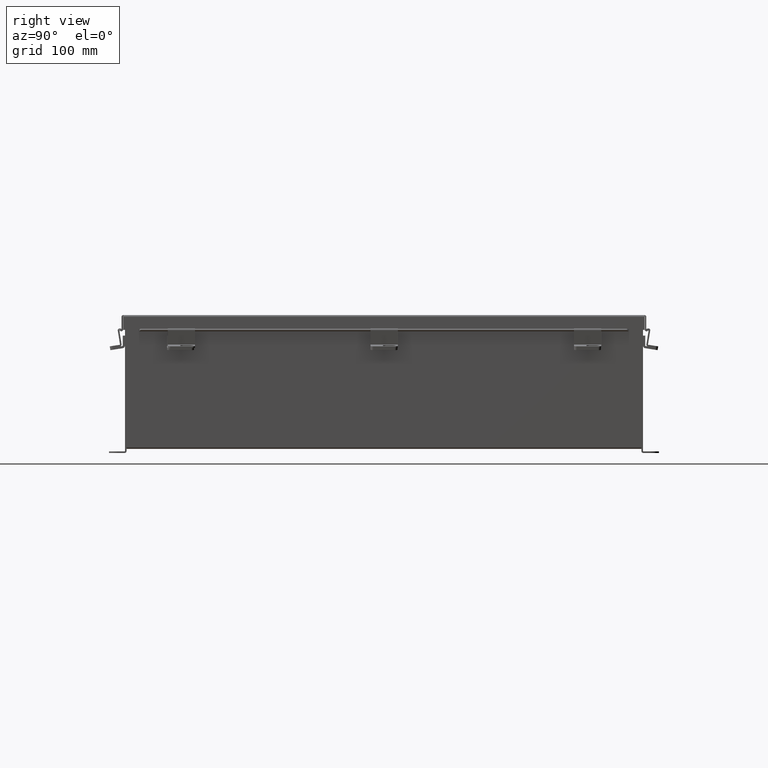
[diagram: clean part render]
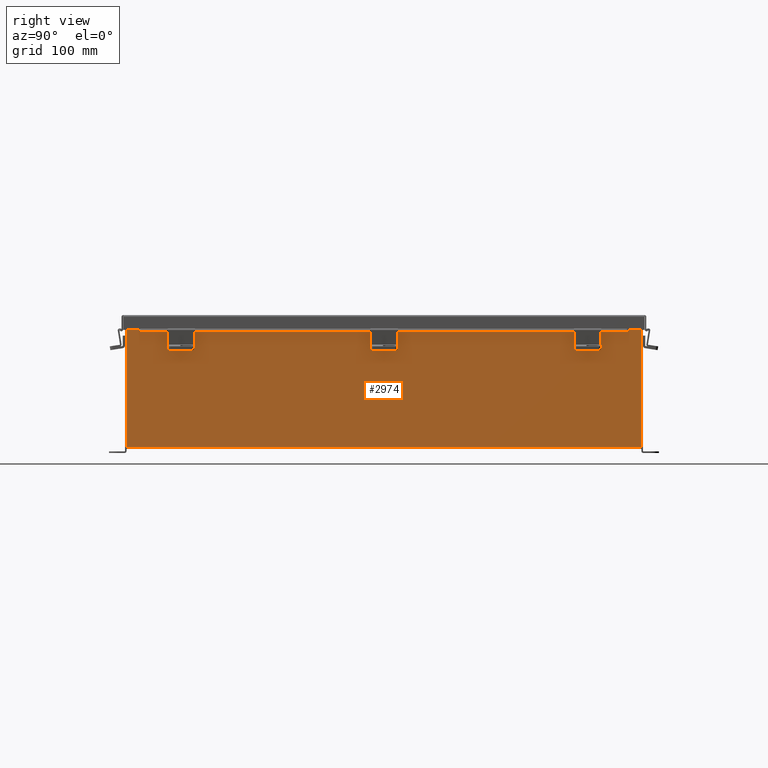
[diagram: same view with one face highlighted and labeled with its STEP entity id]
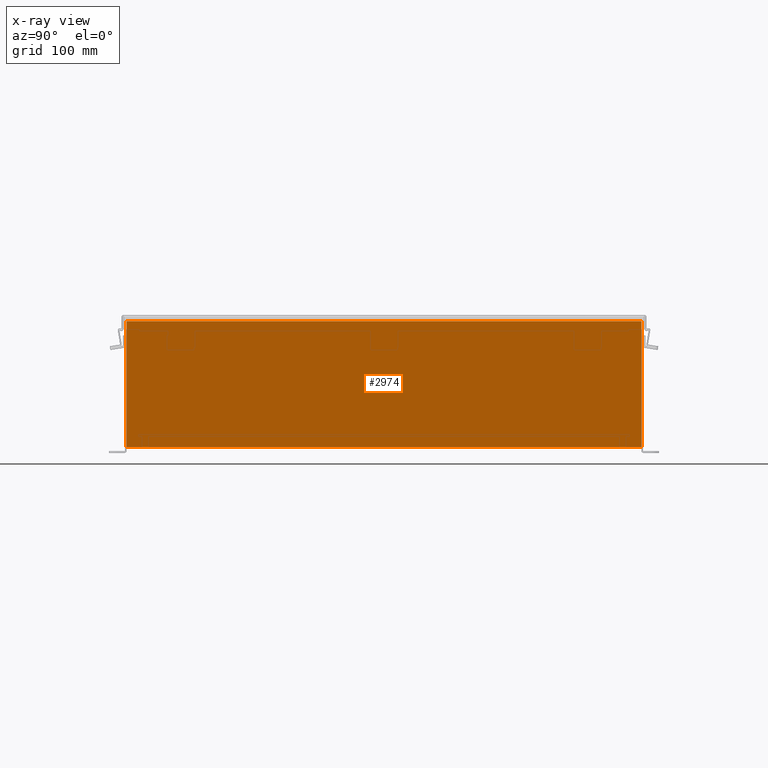
[diagram: x-ray of the same camera — body ghosted, the highlighted face saturated]
A machine part, right view. The second image highlights one B-rep face of the part: STEP entity #2974.
The next image is the same camera in x-ray: the body ghosted, the highlighted face saturated — about 0% of this face is hidden behind the body in this view.
In plain terms, the highlighted planar face has unit normal (-1, 0, 0).
Its self-contained STEP definition (entity closure, byte-faithful):
#78 = DIRECTION ( 'NONE',  ( -0.0000000000000000000, -1.000000000000000000, -0.0000000000000000000 ) ) ;
#608 = CARTESIAN_POINT ( 'NONE',  ( 10.00000000000000000, -11.92530000000000000, 0.01299999999999985900 ) ) ;
#786 = LINE ( 'NONE', #4085, #7155 ) ;
#1065 = CARTESIAN_POINT ( 'NONE',  ( 10.00000000000000000, 11.92529999999999600, -2.942712510675223700E-014 ) ) ;
#1723 = LINE ( 'NONE', #4349, #9102 ) ;
#2073 = CARTESIAN_POINT ( 'NONE',  ( 10.00000000000000000, 11.92529999999999300, 0.01299999999999985900 ) ) ;
#2487 = VERTEX_POINT ( 'NONE', #7092 ) ;
#2641 = ORIENTED_EDGE ( 'NONE', *, *, #8553, .T. ) ;
#2974 = ADVANCED_FACE ( 'NONE', ( #9853 ), #6172, .F. ) ;
#2988 = EDGE_CURVE ( 'NONE', #7101, #2487, #1723, .T. ) ;
#4085 = CARTESIAN_POINT ( 'NONE',  ( 10.00000000000000000, -11.92530000000000000, -3.388345214641706500E-014 ) ) ;
#4204 = LINE ( 'NONE', #6927, #7934 ) ;
#4343 = VERTEX_POINT ( 'NONE', #2073 ) ;
#4349 = CARTESIAN_POINT ( 'NONE',  ( 10.00000000000001800, 11.92529999999999300, 5.837599999999999200 ) ) ;
#4400 = ORIENTED_EDGE ( 'NONE', *, *, #6017, .F. ) ;
#4602 = EDGE_CURVE ( 'NONE', #2487, #5234, #786, .T. ) ;
#4734 = EDGE_LOOP ( 'NONE', ( #6418, #5300, #4400, #2641 ) ) ;
#5126 = DIRECTION ( 'NONE',  ( -0.0000000000000000000, -1.000000000000000000, -0.0000000000000000000 ) ) ;
#5234 = VERTEX_POINT ( 'NONE', #608 ) ;
#5300 = ORIENTED_EDGE ( 'NONE', *, *, #4602, .T. ) ;
#6017 = EDGE_CURVE ( 'NONE', #4343, #5234, #4204, .T. ) ;
#6172 = PLANE ( 'NONE',  #9727 ) ;
#6418 = ORIENTED_EDGE ( 'NONE', *, *, #2988, .T. ) ;
#6678 = CARTESIAN_POINT ( 'NONE',  ( 10.00000000000000000, 0.0000000000000000000, -3.388345214641706500E-014 ) ) ;
#6927 = CARTESIAN_POINT ( 'NONE',  ( 10.00000000000000000, -11.92530000000000000, 0.01299999999999985900 ) ) ;
#7092 = CARTESIAN_POINT ( 'NONE',  ( 10.00000000000002000, -11.92530000000000000, 5.837599999999999200 ) ) ;
#7101 = VERTEX_POINT ( 'NONE', #7196 ) ;
#7155 = VECTOR ( 'NONE', #9451, 39.37007874015748100 ) ;
#7196 = CARTESIAN_POINT ( 'NONE',  ( 10.00000000000001800, 11.92529999999998900, 5.837599999999999200 ) ) ;
#7547 = VECTOR ( 'NONE', #8019, 39.37007874015748100 ) ;
#7934 = VECTOR ( 'NONE', #5126, 39.37007874015748100 ) ;
#8019 = DIRECTION ( 'NONE',  ( 3.361929640444176300E-015, -3.735477378271307500E-016, 1.000000000000000000 ) ) ;
#8553 = EDGE_CURVE ( 'NONE', #4343, #7101, #9611, .T. ) ;
#9009 = DIRECTION ( 'NONE',  ( 3.361929640444175900E-015, 0.0000000000000000000, 1.000000000000000000 ) ) ;
#9102 = VECTOR ( 'NONE', #78, 39.37007874015748100 ) ;
#9417 = DIRECTION ( 'NONE',  ( -1.000000000000000000, 0.0000000000000000000, 3.361929640444175900E-015 ) ) ;
#9451 = DIRECTION ( 'NONE',  ( -3.361929640444176300E-015, 0.0000000000000000000, -1.000000000000000000 ) ) ;
#9611 = LINE ( 'NONE', #1065, #7547 ) ;
#9727 = AXIS2_PLACEMENT_3D ( 'NONE', #6678, #9417, #9009 ) ;
#9853 = FACE_OUTER_BOUND ( 'NONE', #4734, .T. ) ;